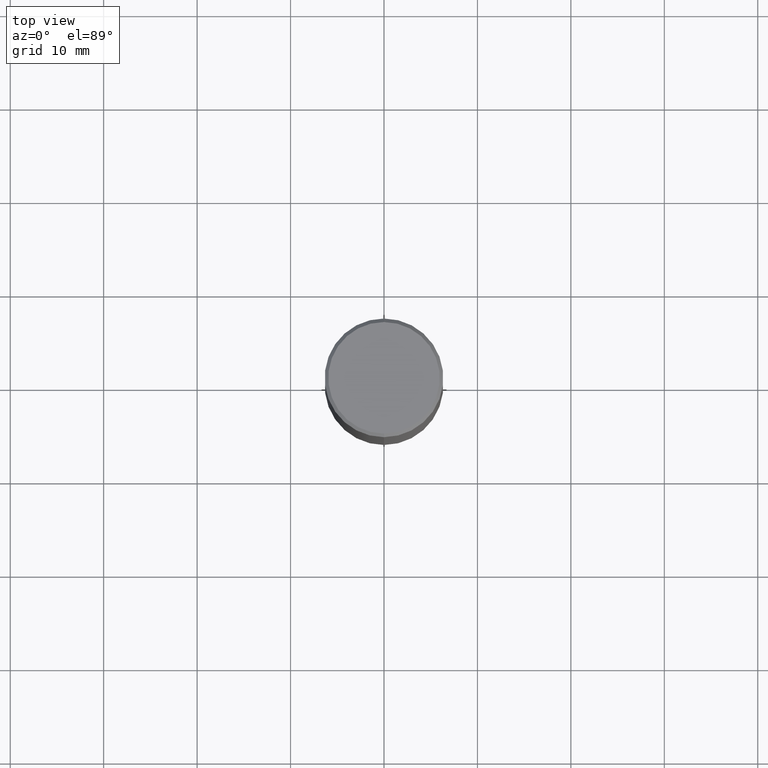
[diagram: clean part render]
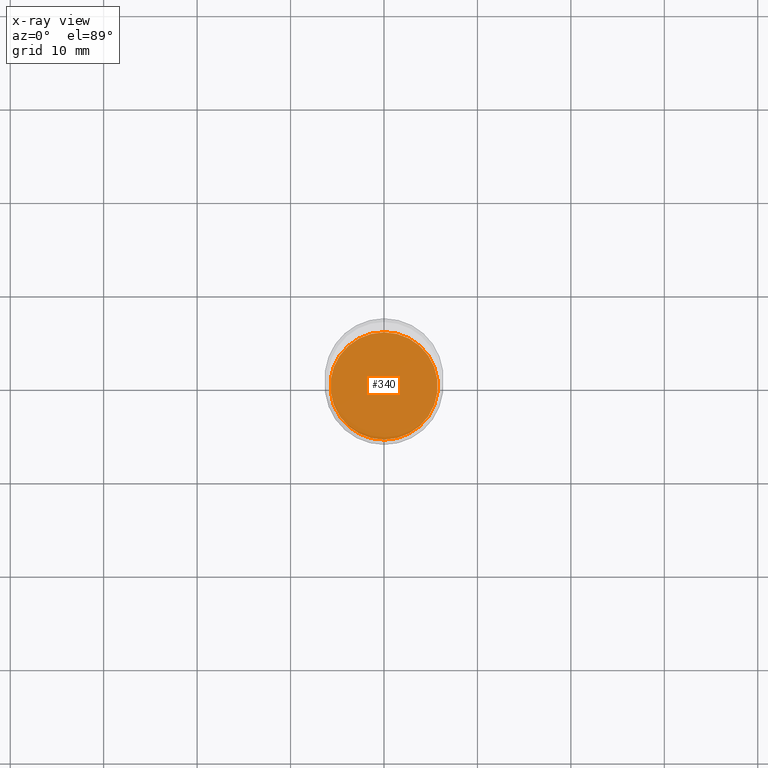
[diagram: x-ray — body ghosted, one internal face saturated and labeled with its STEP entity id]
A machine part, top view, then the same camera in x-ray: the body is ghosted and one INTERNAL B-rep face — a face not visible from any outside direction — is saturated and labeled: STEP entity #340.
In plain terms, the highlighted planar face has unit normal (-0, 0, 1).
Its self-contained STEP definition (entity closure, byte-faithful):
#6 = DIRECTION ( 'NONE',  ( -2.445835289349632530E-29, 3.490956514092661325E-15, 1.000000000000000000 ) ) ;
#9 = VERTEX_POINT ( 'NONE', #291 ) ;
#73 = EDGE_CURVE ( 'NONE', #9, #286, #185, .T. ) ;
#82 = EDGE_LOOP ( 'NONE', ( #365, #370 ) ) ;
#106 = PLANE ( 'NONE',  #157 ) ;
#111 = DIRECTION ( 'NONE',  ( -2.445835289349631970E-29, 3.490956514092661325E-15, 1.000000000000000000 ) ) ;
#157 = AXIS2_PLACEMENT_3D ( 'NONE', #182, #111, #382 ) ;
#164 = DIRECTION ( 'NONE',  ( -6.982962677686265133E-15, -1.000000000000000000, 3.625544782567037861E-15 ) ) ;
#182 = CARTESIAN_POINT ( 'NONE',  ( 4.891670578699265621E-29, -6.981913028185323439E-15, -2.000000000000000444 ) ) ;
#185 = CIRCLE ( 'NONE', #467, 0.2260500000000000287 ) ;
#198 = CARTESIAN_POINT ( 'NONE',  ( 4.891670578699265621E-29, -6.981913028185323439E-15, -2.000000000000000444 ) ) ;
#236 = EDGE_CURVE ( 'NONE', #286, #9, #240, .T. ) ;
#240 = CIRCLE ( 'NONE', #260, 0.2260500000000000287 ) ;
#260 = AXIS2_PLACEMENT_3D ( 'NONE', #198, #6, #164 ) ;
#264 = FACE_OUTER_BOUND ( 'NONE', #82, .T. ) ;
#286 = VERTEX_POINT ( 'NONE', #378 ) ;
#291 = CARTESIAN_POINT ( 'NONE',  ( 1.607958211025155638E-15, 0.2260499999999930620, -2.000000000000000888 ) ) ;
#340 = ADVANCED_FACE ( 'NONE', ( #264 ), #106, .F. ) ;
#365 = ORIENTED_EDGE ( 'NONE', *, *, #236, .F. ) ;
#370 = ORIENTED_EDGE ( 'NONE', *, *, #73, .F. ) ;
#376 = DIRECTION ( 'NONE',  ( -6.982962677686265133E-15, -1.000000000000000000, 3.625544782567037861E-15 ) ) ;
#378 = CARTESIAN_POINT ( 'NONE',  ( -1.578498713290931613E-15, -0.2260500000000069953, -1.999999999999999334 ) ) ;
#382 = DIRECTION ( 'NONE',  ( -6.982962677686265922E-15, -1.000000000000000000, 3.490956514092661325E-15 ) ) ;
#465 = CARTESIAN_POINT ( 'NONE',  ( 4.891670578699265621E-29, -6.981913028185323439E-15, -2.000000000000000444 ) ) ;
#467 = AXIS2_PLACEMENT_3D ( 'NONE', #465, #499, #376 ) ;
#499 = DIRECTION ( 'NONE',  ( -2.445835289349632530E-29, 3.490956514092661325E-15, 1.000000000000000000 ) ) ;